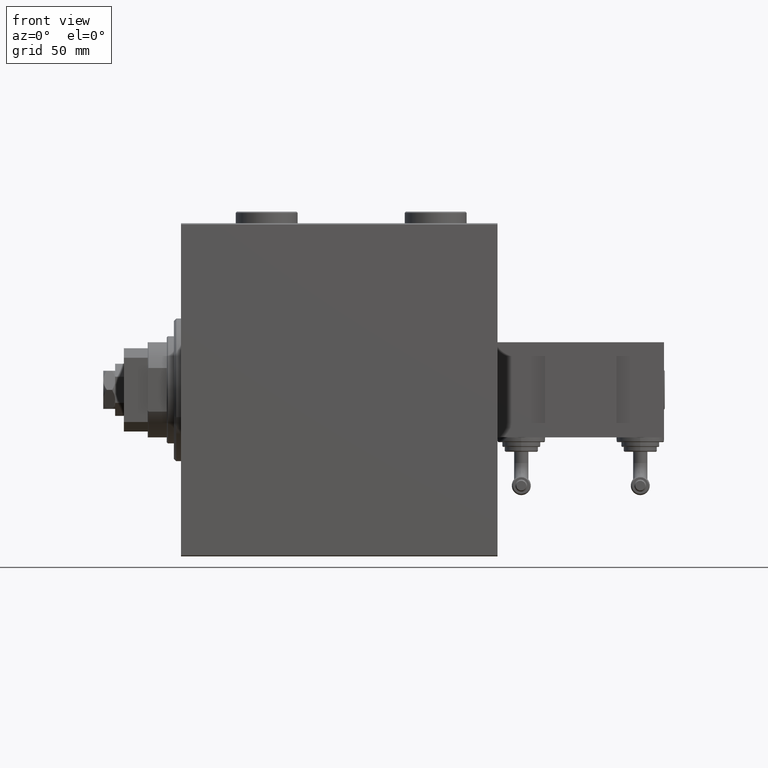
[diagram: clean part render]
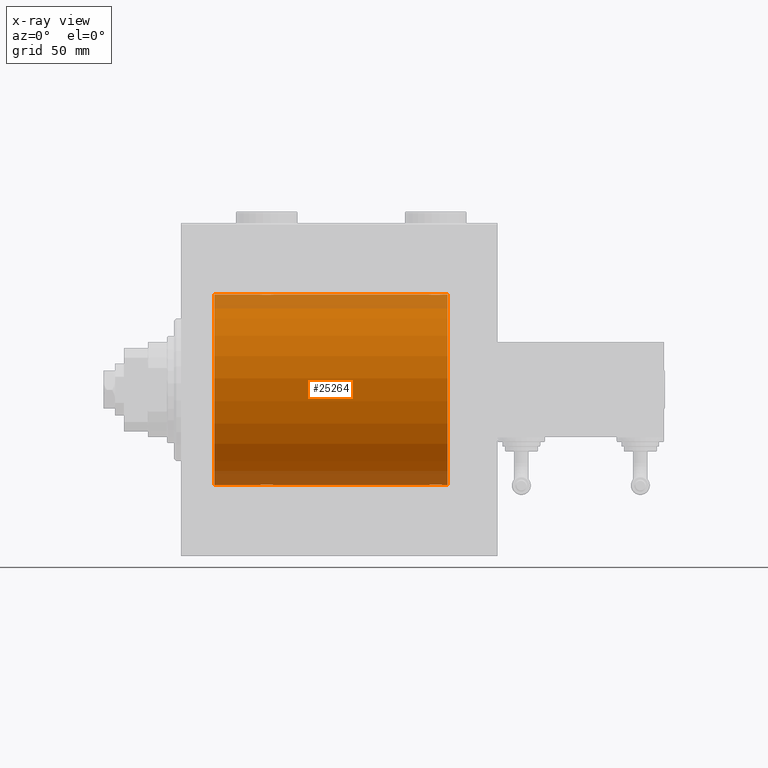
[diagram: x-ray — body ghosted, one internal face saturated and labeled with its STEP entity id]
A machine part, front view, then the same camera in x-ray: the body is ghosted and one INTERNAL B-rep face — a face not visible from any outside direction — is saturated and labeled: STEP entity #25264.
In plain terms, the highlighted cylindrical surface (partial cylindrical patch) has radius 40 mm, axis along (-1, -0, -0).
Its self-contained STEP definition (entity closure, byte-faithful):
#48 = B_SPLINE_CURVE_WITH_KNOTS ( 'NONE', 3,
 ( #1043, #44565, #8462, #36867, #37397, #28648, #4753, #12440, #507, #25183, #45085, #5015, #44820, #33154, #17209, #16672, #46291, #44311, #29187, #16939, #33425, #24655, #7950, #3966, #40325, #32879, #49043, #32374, #4224, #20144, #49308, #16156 ),
 .UNSPECIFIED., .F., .F.,
 ( 4, 2, 2, 2, 2, 2, 2, 2, 2, 2, 2, 2, 2, 2, 2, 4 ),
 ( 0.009382660366305081018, 0.009968941372944116822, 0.01055522237958315263, 0.01114150338622219016, 0.01172778439286122597, 0.01231406539950026177, 0.01290034640613929931, 0.01348662741277833511, 0.01407290841941737092, 0.01465918942605640846, 0.01524547043269544253, 0.01583175143933448006, 0.01641803244597351413, 0.01700431345261255167, 0.01759059445925158921, 0.01876315647252966082 ),
 .UNSPECIFIED. ) ;
#507 = CARTESIAN_POINT ( 'NONE',  ( 33.73902383005257377, -1.981471132463168638, 39.95113231465138881 ) ) ;
#699 = CARTESIAN_POINT ( 'NONE',  ( 104.0189812288907376, -0.3904143323716007807, 39.99856256910221219 ) ) ;
#874 = ORIENTED_EDGE ( 'NONE', *, *, #49864, .T. ) ;
#975 = B_SPLINE_CURVE_WITH_KNOTS ( 'NONE', 3,
 ( #37813, #13112, #29331, #42295, #33031, #25590, #9129, #9666, #9397, #1447, #41781, #49185, #5689, #12843, #29064, #29857, #46024, #21864, #35142, #27434, #47053, #46795, #26382, #10963, #22657, #50502, #30377, #27169, #11231, #10455, #47308, #22393 ),
 .UNSPECIFIED., .F., .F.,
 ( 4, 2, 2, 2, 2, 2, 2, 2, 2, 2, 2, 2, 2, 2, 2, 4 ),
 ( 0.009382660366305127855, 0.009968941372944165394, 0.01055522237958320120, 0.01114150338622223874, 0.01172778439286127627, 0.01231406539950031381, 0.01290034640613934962, 0.01348662741277838716, 0.01407290841941742296, 0.01465918942605646050, 0.01524547043269549804, 0.01583175143933453557, 0.01641803244597356964, 0.01700431345261260718, 0.01759059445925164472, 0.01876315647252971980 ),
 .UNSPECIFIED. ) ;
#1043 = CARTESIAN_POINT ( 'NONE',  ( 32.99999999999999289, -1.483452932268112700E-23, 40.00000000000000000 ) ) ;
#1077 = EDGE_CURVE ( 'NONE', #3553, #29092, #17455, .T. ) ;
#1447 = CARTESIAN_POINT ( 'NONE',  ( 108.9846144781227935, -2.258217541132904405, -39.93644519243652979 ) ) ;
#2131 = CARTESIAN_POINT ( 'NONE',  ( 32.99999999999999289, -1.483452932268112700E-23, 40.00000000000000000 ) ) ;
#2494 = CARTESIAN_POINT ( 'NONE',  ( 110.0000000000000000, -0.3964922677423690645, 40.00000000000000000 ) ) ;
#2718 = CARTESIAN_POINT ( 'NONE',  ( 38.98101877110926239, -0.3904143323715922875, -39.99856256910221219 ) ) ;
#2768 = EDGE_CURVE ( 'NONE', #15021, #48831, #34341, .T. ) ;
#2979 = CARTESIAN_POINT ( 'NONE',  ( 33.00000000000000000, -0.3964922677423601272, -40.00000000000001421 ) ) ;
#3111 = ORIENTED_EDGE ( 'NONE', *, *, #2768, .T. ) ;
#3493 = CARTESIAN_POINT ( 'NONE',  ( 35.60890307490667794, -2.980812880639888363, -39.88879797994690080 ) ) ;
#3553 = VERTEX_POINT ( 'NONE', #27607 ) ;
#3566 = CARTESIAN_POINT ( 'NONE',  ( 13.99999999999999822, 4.898587196589413026E-15, -40.00000000000000000 ) ) ;
#3966 = CARTESIAN_POINT ( 'NONE',  ( 37.82690184632411956, -2.387636253591820523, 39.92882473497731866 ) ) ;
#4224 = CARTESIAN_POINT ( 'NONE',  ( 38.69537007708435539, -1.331594428131646080, 39.97823692017209396 ) ) ;
#4686 = CARTESIAN_POINT ( 'NONE',  ( 105.1695517717759998, -2.384933850258125876, 39.92898715513240404 ) ) ;
#4753 = CARTESIAN_POINT ( 'NONE',  ( 33.39566400087915810, -1.502129635934004170, 39.97212271185186694 ) ) ;
#4787 = DIRECTION ( 'NONE',  ( -1.000000000000000000, -0.000000000000000000, -0.000000000000000000 ) ) ;
#4949 = CARTESIAN_POINT ( 'NONE',  ( 106.0306165810553409, -2.845855236045354619, 39.89870693240651178 ) ) ;
#5015 = CARTESIAN_POINT ( 'NONE',  ( 34.49556917086532337, -2.602909538701755565, 39.91537030566259148 ) ) ;
#5096 = EDGE_CURVE ( 'NONE', #5564, #35426, #7562, .T. ) ;
#5367 = CIRCLE ( 'NONE', #24862, 40.00000000000000000 ) ;
#5564 = VERTEX_POINT ( 'NONE', #30842 ) ;
#5689 = CARTESIAN_POINT ( 'NONE',  ( 108.3322426886586669, -2.695129988695733836, -39.90917164320281785 ) ) ;
#6460 = CARTESIAN_POINT ( 'NONE',  ( 109.9202617499164916, -0.7903958539027468033, 39.99381900068937057 ) ) ;
#6680 = CARTESIAN_POINT ( 'NONE',  ( 37.33224268865864559, -2.695129988695730727, -39.90917164320281074 ) ) ;
#7460 = CARTESIAN_POINT ( 'NONE',  ( 33.39811271871507614, -1.506322235190776127, -39.97196309111974699 ) ) ;
#7562 = LINE ( 'NONE', #39941, #21165 ) ;
#7950 = CARTESIAN_POINT ( 'NONE',  ( 37.50088468404035069, -2.604941918888315833, 39.91523680494983495 ) ) ;
#8462 = CARTESIAN_POINT ( 'NONE',  ( 33.01898122889073051, -0.3904143323715975056, 39.99856256910221219 ) ) ;
#9129 = CARTESIAN_POINT ( 'NONE',  ( 109.6043359991208632, -1.502129635934003504, -39.97212271185185273 ) ) ;
#9397 = CARTESIAN_POINT ( 'NONE',  ( 109.2609761699474404, -1.981471132463168638, -39.95113231465138881 ) ) ;
#9496 = CARTESIAN_POINT ( 'NONE',  ( 112.0000000000000000, 0.000000000000000000, 40.00000000000000000 ) ) ;
#9666 = CARTESIAN_POINT ( 'NONE',  ( 109.3850760091535506, -1.830402106103516058, -39.95843610133493229 ) ) ;
#10455 = CARTESIAN_POINT ( 'NONE',  ( 104.0797382500835369, -0.7903958539027354790, -39.99381900068937057 ) ) ;
#10929 = CARTESIAN_POINT ( 'NONE',  ( 34.49911531595964220, -2.604941918888299401, -39.91523680494982784 ) ) ;
#10963 = CARTESIAN_POINT ( 'NONE',  ( 105.1730981536759089, -2.387636253591818747, -39.92882473497732576 ) ) ;
#11030 = ORIENTED_EDGE ( 'NONE', *, *, #27227, .T. ) ;
#11228 = CARTESIAN_POINT ( 'NONE',  ( 109.2582967032050192, -1.984537326394317569, 39.95097977400578060 ) ) ;
#11231 = CARTESIAN_POINT ( 'NONE',  ( 104.3046299229156233, -1.331594428131639640, -39.97823692017208685 ) ) ;
#11452 = CARTESIAN_POINT ( 'NONE',  ( 38.26097616994741912, -1.981471132463159535, -39.95113231465138881 ) ) ;
#11562 = ORIENTED_EDGE ( 'NONE', *, *, #19044, .T. ) ;
#12081 = VECTOR ( 'NONE', #43175, 1000.000000000000000 ) ;
#12175 = VECTOR ( 'NONE', #4787, 1000.000000000000000 ) ;
#12382 = CARTESIAN_POINT ( 'NONE',  ( 104.7390238300526022, -1.981471132463181295, 39.95113231465138881 ) ) ;
#12440 = CARTESIAN_POINT ( 'NONE',  ( 33.61492399084646365, -1.830402106103518056, 39.95843610133494650 ) ) ;
#12843 = CARTESIAN_POINT ( 'NONE',  ( 107.9693834189446875, -2.845855236045339520, -39.89870693240651178 ) ) ;
#12890 = AXIS2_PLACEMENT_3D ( 'NONE', #32105, #36090, #24393 ) ;
#12943 = DIRECTION ( 'NONE',  ( -1.000000000000000000, -0.000000000000000000, -0.000000000000000000 ) ) ;
#13112 = CARTESIAN_POINT ( 'NONE',  ( 110.0000000000000284, -0.1957844162750512762, -39.99999999999999289 ) ) ;
#13841 = ORIENTED_EDGE ( 'NONE', *, *, #23745, .T. ) ;
#14267 = EDGE_CURVE ( 'NONE', #33406, #49078, #17245, .T. ) ;
#14291 = VECTOR ( 'NONE', #12943, 1000.000000000000000 ) ;
#14419 = CARTESIAN_POINT ( 'NONE',  ( 108.8269018463241053, -2.387636253591832514, 39.92882473497732576 ) ) ;
#14651 = CARTESIAN_POINT ( 'NONE',  ( 36.20041286019198168, -2.999840380514733340, -39.88735335562824957 ) ) ;
#14912 = CARTESIAN_POINT ( 'NONE',  ( 38.69721340580881019, -1.327859336864143147, -39.97836169682018692 ) ) ;
#15021 = VERTEX_POINT ( 'NONE', #35561 ) ;
#15425 = CARTESIAN_POINT ( 'NONE',  ( 33.07973825008353685, -0.7903958539027335917, -39.99381900068937057 ) ) ;
#15681 = CARTESIAN_POINT ( 'NONE',  ( 32.99999999999999289, 8.398598542115384856E-15, -40.00000000000000000 ) ) ;
#16100 = EDGE_CURVE ( 'NONE', #15021, #24383, #36655, .T. ) ;
#16156 = CARTESIAN_POINT ( 'NONE',  ( 39.00000000000000000, -1.886242593979369380E-15, 40.00000000000000000 ) ) ;
#16353 = CARTESIAN_POINT ( 'NONE',  ( 104.3027865941912182, -1.327859336864157358, 39.97836169682016561 ) ) ;
#16672 = CARTESIAN_POINT ( 'NONE',  ( 35.60477516546423260, -2.980272303779554655, 39.88883864243167920 ) ) ;
#16939 = CARTESIAN_POINT ( 'NONE',  ( 36.77455678826341057, -2.904869018727228358, 39.89440043036668015 ) ) ;
#17119 = ORIENTED_EDGE ( 'NONE', *, *, #48047, .T. ) ;
#17209 = CARTESIAN_POINT ( 'NONE',  ( 35.22130476584258219, -2.903766417398241373, 39.89448096967571189 ) ) ;
#17245 = LINE ( 'NONE', #21490, #12175 ) ;
#17455 = LINE ( 'NONE', #9496, #14291 ) ;
#18669 = CARTESIAN_POINT ( 'NONE',  ( 107.3910969250933505, -2.980812880639910123, 39.88879797994688658 ) ) ;
#18932 = CARTESIAN_POINT ( 'NONE',  ( 110.0000000000000142, -2.794909241144302331E-15, 40.00000000000000000 ) ) ;
#18995 = DIRECTION ( 'NONE',  ( -1.000000000000000000, -0.000000000000000000, -0.000000000000000000 ) ) ;
#19044 = EDGE_CURVE ( 'NONE', #20350, #49078, #5367, .T. ) ;
#19115 = VECTOR ( 'NONE', #47440, 1000.000000000000000 ) ;
#20144 = CARTESIAN_POINT ( 'NONE',  ( 38.92026174991646315, -0.7903958539027399199, 39.99381900068935636 ) ) ;
#20350 = VERTEX_POINT ( 'NONE', #3566 ) ;
#20860 = CARTESIAN_POINT ( 'NONE',  ( 105.4955691708653518, -2.602909538701771996, 39.91537030566259148 ) ) ;
#21117 = CARTESIAN_POINT ( 'NONE',  ( 104.1533472698686182, -0.9668189122103458821, 39.98872185468384544 ) ) ;
#21165 = VECTOR ( 'NONE', #18995, 1000.000000000000000 ) ;
#21372 = B_SPLINE_CURVE_WITH_KNOTS ( 'NONE', 3,
 ( #28590, #24854, #699, #25118, #21117, #16353, #29125, #32564, #12382, #41044, #4686, #20860, #41304, #4949, #47051, #39618, #34614, #25651, #18669, #27432, #37872, #51803, #43350, #14419, #22655, #11228, #30902, #42822, #50760, #6460, #2494, #18932 ),
 .UNSPECIFIED., .F., .F.,
 ( 4, 2, 2, 2, 2, 2, 2, 2, 2, 2, 2, 2, 2, 2, 2, 4 ),
 ( 0.009382660366305098365, 0.009968941372944135904, 0.01055522237958317344, 0.01114150338622220925, 0.01172778439286124678, 0.01231406539950028432, 0.01290034640613932013, 0.01348662741277835767, 0.01407290841941739520, 0.01465918942605643274, 0.01524547043269547028, 0.01583175143933450435, 0.01641803244597354189, 0.01700431345261257943, 0.01759059445925161697, 0.01876315647252969204 ),
 .UNSPECIFIED. ) ;
#21490 = CARTESIAN_POINT ( 'NONE',  ( 112.0000000000000000, 0.000000000000000000, 40.00000000000000000 ) ) ;
#21864 = CARTESIAN_POINT ( 'NONE',  ( 106.8043946892691736, -3.000157693440637985, -39.88732948994960026 ) ) ;
#22393 = CARTESIAN_POINT ( 'NONE',  ( 104.0000000000000142, 4.637093495725619447E-15, -40.00000000000000000 ) ) ;
#22655 = CARTESIAN_POINT ( 'NONE',  ( 108.9813627951423456, -2.261082456166716881, 39.93628274425758207 ) ) ;
#22657 = CARTESIAN_POINT ( 'NONE',  ( 105.0186372048576970, -2.261082456166704446, -39.93628274425758917 ) ) ;
#23141 = CARTESIAN_POINT ( 'NONE',  ( 37.83044822822401443, -2.384933850258097010, -39.92898715513240404 ) ) ;
#23438 = DIRECTION ( 'NONE',  ( -1.000000000000000000, -0.000000000000000000, -0.000000000000000000 ) ) ;
#23517 = CARTESIAN_POINT ( 'NONE',  ( 112.0000000000000000, 0.000000000000000000, 40.00000000000000000 ) ) ;
#23745 = EDGE_CURVE ( 'NONE', #33406, #29092, #48, .T. ) ;
#24383 = VERTEX_POINT ( 'NONE', #44827 ) ;
#24393 = DIRECTION ( 'NONE',  ( 0.000000000000000000, 0.000000000000000000, 1.000000000000000000 ) ) ;
#24602 = EDGE_CURVE ( 'NONE', #36789, #20350, #35522, .T. ) ;
#24655 = CARTESIAN_POINT ( 'NONE',  ( 37.32853644746295885, -2.696981015661930936, 39.90904630908465833 ) ) ;
#24854 = CARTESIAN_POINT ( 'NONE',  ( 104.0000000000000142, -0.1957844162750575212, 39.99999999999999289 ) ) ;
#24862 = AXIS2_PLACEMENT_3D ( 'NONE', #41580, #41311, #24865 ) ;
#24865 = DIRECTION ( 'NONE',  ( 0.000000000000000000, 0.000000000000000000, 1.000000000000000000 ) ) ;
#25118 = CARTESIAN_POINT ( 'NONE',  ( 104.0957482634864846, -0.7773146824711071323, 39.99291453282344833 ) ) ;
#25183 = CARTESIAN_POINT ( 'NONE',  ( 34.01538552187719233, -2.258217541132905293, 39.93644519243653690 ) ) ;
#25264 = ADVANCED_FACE ( 'NONE', ( #47574 ), #31421, .F. ) ;
#25590 = CARTESIAN_POINT ( 'NONE',  ( 109.6972134058088386, -1.327859336864146700, -39.97836169682017982 ) ) ;
#25651 = CARTESIAN_POINT ( 'NONE',  ( 107.1956053107308406, -3.000157693440651752, 39.88732948994960026 ) ) ;
#26382 = CARTESIAN_POINT ( 'NONE',  ( 105.4991153159596564, -2.604941918888313612, -39.91523680494982784 ) ) ;
#27169 = CARTESIAN_POINT ( 'NONE',  ( 104.3981127187150832, -1.506322235190780345, -39.97196309111975410 ) ) ;
#27227 = EDGE_CURVE ( 'NONE', #3553, #37212, #21372, .T. ) ;
#27432 = CARTESIAN_POINT ( 'NONE',  ( 107.7745567882634248, -2.904869018727233687, 39.89440043036668726 ) ) ;
#27434 = CARTESIAN_POINT ( 'NONE',  ( 106.2254432117366036, -2.904869018727219920, -39.89440043036668726 ) ) ;
#27607 = CARTESIAN_POINT ( 'NONE',  ( 104.0000000000000142, -1.483492375313373751E-23, 40.00000000000000000 ) ) ;
#27655 = CARTESIAN_POINT ( 'NONE',  ( 33.74170329679496660, -1.984537326394296253, -39.95097977400577349 ) ) ;
#28590 = CARTESIAN_POINT ( 'NONE',  ( 104.0000000000000142, -1.483492375313373751E-23, 40.00000000000000000 ) ) ;
#28648 = CARTESIAN_POINT ( 'NONE',  ( 33.30278659419118270, -1.327859336864149586, 39.97836169682017982 ) ) ;
#29064 = CARTESIAN_POINT ( 'NONE',  ( 107.7786952341574249, -2.903766417398237820, -39.89448096967571189 ) ) ;
#29092 = VERTEX_POINT ( 'NONE', #43968 ) ;
#29125 = CARTESIAN_POINT ( 'NONE',  ( 104.3956640008791794, -1.502129635934016383, 39.97212271185185983 ) ) ;
#29187 = CARTESIAN_POINT ( 'NONE',  ( 36.39109692509333627, -2.980812880639903906, 39.88879797994688658 ) ) ;
#29331 = CARTESIAN_POINT ( 'NONE',  ( 109.9810187711093050, -0.3904143323715937308, -39.99856256910221219 ) ) ;
#29857 = CARTESIAN_POINT ( 'NONE',  ( 107.3952248345357390, -2.980272303779549325, -39.88883864243167920 ) ) ;
#30365 = DIRECTION ( 'NONE',  ( -1.000000000000000000, -0.000000000000000000, -0.000000000000000000 ) ) ;
#30377 = CARTESIAN_POINT ( 'NONE',  ( 104.6174831908853804, -1.833695109615715690, -39.95828327492363741 ) ) ;
#30842 = CARTESIAN_POINT ( 'NONE',  ( 104.0000000000000142, 4.637093495725619447E-15, -40.00000000000000000 ) ) ;
#30865 = CARTESIAN_POINT ( 'NONE',  ( 33.30462992291564461, -1.331594428131637420, -39.97823692017210817 ) ) ;
#30902 = CARTESIAN_POINT ( 'NONE',  ( 109.3825168091146622, -1.833695109615728125, 39.95828327492363741 ) ) ;
#31124 = CARTESIAN_POINT ( 'NONE',  ( 37.98461447812281477, -2.258217541132894191, -39.93644519243654400 ) ) ;
#31383 = CARTESIAN_POINT ( 'NONE',  ( 39.00000000000000000, -0.1957844162750501937, -39.99999999999999289 ) ) ;
#31421 = CYLINDRICAL_SURFACE ( 'NONE', #39500, 40.00000000000000000 ) ;
#31637 = CARTESIAN_POINT ( 'NONE',  ( 36.77869523415741781, -2.903766417398227162, -39.89448096967571900 ) ) ;
#31895 = CARTESIAN_POINT ( 'NONE',  ( 37.50443082913467663, -2.602909538701744463, -39.91537030566261279 ) ) ;
#32105 = CARTESIAN_POINT ( 'NONE',  ( 112.0000000000000000, 0.000000000000000000, 0.000000000000000000 ) ) ;
#32374 = CARTESIAN_POINT ( 'NONE',  ( 38.60188728128492386, -1.506322235190783232, 39.97196309111974699 ) ) ;
#32564 = CARTESIAN_POINT ( 'NONE',  ( 104.6149239908464921, -1.830402106103529380, 39.95843610133493229 ) ) ;
#32879 = CARTESIAN_POINT ( 'NONE',  ( 38.25829670320501918, -1.984537326394312462, 39.95097977400578060 ) ) ;
#33031 = CARTESIAN_POINT ( 'NONE',  ( 109.8466527301314102, -0.9668189122103358901, -39.98872185468385254 ) ) ;
#33154 = CARTESIAN_POINT ( 'NONE',  ( 35.03061658105535514, -2.845855236045346626, 39.89870693240651889 ) ) ;
#33406 = VERTEX_POINT ( 'NONE', #2131 ) ;
#33425 = CARTESIAN_POINT ( 'NONE',  ( 36.96489325853514174, -2.847401743820462183, 39.89859630624607689 ) ) ;
#34341 = LINE ( 'NONE', #50488, #50758 ) ;
#34614 = CARTESIAN_POINT ( 'NONE',  ( 106.7995871398080254, -2.999840380514755100, 39.88735335562824957 ) ) ;
#35104 = CARTESIAN_POINT ( 'NONE',  ( 35.80439468926913094, -3.000157693440628659, -39.88732948994960736 ) ) ;
#35142 = CARTESIAN_POINT ( 'NONE',  ( 106.6089030749067064, -2.980812880639896356, -39.88879797994688658 ) ) ;
#35211 = ORIENTED_EDGE ( 'NONE', *, *, #14267, .F. ) ;
#35362 = CARTESIAN_POINT ( 'NONE',  ( 34.01863720485771125, -2.261082456166694676, -39.93628274425758917 ) ) ;
#35426 = VERTEX_POINT ( 'NONE', #51631 ) ;
#35522 = LINE ( 'NONE', #43222, #19115 ) ;
#35561 = CARTESIAN_POINT ( 'NONE',  ( 112.0000000000000000, 4.898587196589413026E-15, -40.00000000000000000 ) ) ;
#35857 = ORIENTED_EDGE ( 'NONE', *, *, #46571, .F. ) ;
#36090 = DIRECTION ( 'NONE',  ( -1.000000000000000000, 0.000000000000000000, 0.000000000000000000 ) ) ;
#36097 = CARTESIAN_POINT ( 'NONE',  ( 13.99999999999999822, 0.000000000000000000, 40.00000000000000000 ) ) ;
#36655 = CIRCLE ( 'NONE', #12890, 40.00000000000000000 ) ;
#36740 = CARTESIAN_POINT ( 'NONE',  ( 110.0000000000000142, 4.898587181754971267E-15, -40.00000000000000000 ) ) ;
#36789 = VERTEX_POINT ( 'NONE', #44284 ) ;
#36867 = CARTESIAN_POINT ( 'NONE',  ( 33.09574826348647036, -0.7773146824711031355, 39.99291453282343412 ) ) ;
#37106 = B_SPLINE_CURVE_WITH_KNOTS ( 'NONE', 3,
 ( #52022, #31383, #2718, #39069, #47016, #14912, #47273, #47535, #11452, #31124, #23141, #31895, #6680, #51511, #31637, #43049, #14651, #35104, #3493, #47789, #39334, #51770, #10929, #43578, #35362, #27655, #43830, #7460, #30865, #15425, #2979, #15681 ),
 .UNSPECIFIED., .F., .F.,
 ( 4, 2, 2, 2, 2, 2, 2, 2, 2, 2, 2, 2, 2, 2, 2, 4 ),
 ( 0.009382660366305113978, 0.009968941372944149781, 0.01055522237958318559, 0.01114150338622222139, 0.01172778439286125719, 0.01231406539950029300, 0.01290034640613932707, 0.01348662741277836287, 0.01407290841941739867, 0.01465918942605643448, 0.01524547043269547028, 0.01583175143933450435, 0.01641803244597354189, 0.01700431345261257943, 0.01759059445925161697, 0.01876315647252968857 ),
 .UNSPECIFIED. ) ;
#37172 = ORIENTED_EDGE ( 'NONE', *, *, #5096, .T. ) ;
#37212 = VERTEX_POINT ( 'NONE', #42054 ) ;
#37397 = CARTESIAN_POINT ( 'NONE',  ( 33.15334726986859692, -0.9668189122103382216, 39.98872185468385254 ) ) ;
#37813 = CARTESIAN_POINT ( 'NONE',  ( 110.0000000000000142, 4.898587181754971267E-15, -40.00000000000000000 ) ) ;
#37872 = CARTESIAN_POINT ( 'NONE',  ( 107.9648932585351417, -2.847401743820471065, 39.89859630624608400 ) ) ;
#39069 = CARTESIAN_POINT ( 'NONE',  ( 38.90425173651352253, -0.7773146824710970293, -39.99291453282343412 ) ) ;
#39334 = CARTESIAN_POINT ( 'NONE',  ( 35.03510674146485115, -2.847401743820447084, -39.89859630624608400 ) ) ;
#39500 = AXIS2_PLACEMENT_3D ( 'NONE', #51810, #23438, #47831 ) ;
#39618 = CARTESIAN_POINT ( 'NONE',  ( 106.6047751654642468, -2.980272303779561316, 39.88883864243167920 ) ) ;
#39941 = CARTESIAN_POINT ( 'NONE',  ( 112.0000000000000000, 4.898587196589413026E-15, -40.00000000000000000 ) ) ;
#40222 = LINE ( 'NONE', #23517, #12081 ) ;
#40325 = CARTESIAN_POINT ( 'NONE',  ( 37.98136279514229585, -2.261082456166712440, 39.93628274425758207 ) ) ;
#41044 = CARTESIAN_POINT ( 'NONE',  ( 105.0153855218772065, -2.258217541132916395, 39.93644519243652979 ) ) ;
#41304 = CARTESIAN_POINT ( 'NONE',  ( 105.6677573113413615, -2.695129988695747603, 39.90917164320281785 ) ) ;
#41311 = DIRECTION ( 'NONE',  ( -1.000000000000000000, 0.000000000000000000, 0.000000000000000000 ) ) ;
#41580 = CARTESIAN_POINT ( 'NONE',  ( 13.99999999999999822, 0.000000000000000000, 0.000000000000000000 ) ) ;
#41781 = CARTESIAN_POINT ( 'NONE',  ( 108.8304482282240286, -2.384933850258111221, -39.92898715513240404 ) ) ;
#42054 = CARTESIAN_POINT ( 'NONE',  ( 110.0000000000000142, -2.794909241144302331E-15, 40.00000000000000000 ) ) ;
#42295 = CARTESIAN_POINT ( 'NONE',  ( 109.9042517365135296, -0.7773146824710993608, -39.99291453282344122 ) ) ;
#42822 = CARTESIAN_POINT ( 'NONE',  ( 109.6018872812849310, -1.506322235190793668, 39.97196309111975410 ) ) ;
#43049 = CARTESIAN_POINT ( 'NONE',  ( 36.39522483453575319, -2.980272303779539556, -39.88883864243169342 ) ) ;
#43175 = DIRECTION ( 'NONE',  ( -1.000000000000000000, -0.000000000000000000, -0.000000000000000000 ) ) ;
#43222 = CARTESIAN_POINT ( 'NONE',  ( 112.0000000000000000, 4.898587196589413026E-15, -40.00000000000000000 ) ) ;
#43350 = CARTESIAN_POINT ( 'NONE',  ( 108.5008846840403436, -2.604941918888326935, 39.91523680494982784 ) ) ;
#43578 = CARTESIAN_POINT ( 'NONE',  ( 34.17309815367587333, -2.387636253591803648, -39.92882473497732576 ) ) ;
#43830 = CARTESIAN_POINT ( 'NONE',  ( 33.61748319088536618, -1.833695109615709917, -39.95828327492364451 ) ) ;
#43968 = CARTESIAN_POINT ( 'NONE',  ( 39.00000000000000000, -1.886242593979369380E-15, 40.00000000000000000 ) ) ;
#44284 = CARTESIAN_POINT ( 'NONE',  ( 32.99999999999999289, 8.398598542115384856E-15, -40.00000000000000000 ) ) ;
#44311 = CARTESIAN_POINT ( 'NONE',  ( 36.19560531073086196, -3.000157693440645090, 39.88732948994960026 ) ) ;
#44400 = ORIENTED_EDGE ( 'NONE', *, *, #1077, .F. ) ;
#44565 = CARTESIAN_POINT ( 'NONE',  ( 32.99999999999997158, -0.1957844162750553285, 40.00000000000000000 ) ) ;
#44820 = CARTESIAN_POINT ( 'NONE',  ( 34.66775731134134020, -2.695129988695739609, 39.90917164320281074 ) ) ;
#44827 = CARTESIAN_POINT ( 'NONE',  ( 112.0000000000000000, 0.000000000000000000, 40.00000000000000000 ) ) ;
#45085 = CARTESIAN_POINT ( 'NONE',  ( 34.16955177177597847, -2.384933850258108556, 39.92898715513240404 ) ) ;
#46024 = CARTESIAN_POINT ( 'NONE',  ( 107.2004128601920030, -2.999840380514741334, -39.88735335562824957 ) ) ;
#46244 = ORIENTED_EDGE ( 'NONE', *, *, #16100, .F. ) ;
#46291 = CARTESIAN_POINT ( 'NONE',  ( 35.79958713980801832, -2.999840380514748883, 39.88735335562824247 ) ) ;
#46571 = EDGE_CURVE ( 'NONE', #24383, #37212, #40222, .T. ) ;
#46795 = CARTESIAN_POINT ( 'NONE',  ( 105.6714635525370483, -2.696981015661927383, -39.90904630908467254 ) ) ;
#47016 = CARTESIAN_POINT ( 'NONE',  ( 38.84665273013138886, -0.9668189122103337807, -39.98872185468385965 ) ) ;
#47051 = CARTESIAN_POINT ( 'NONE',  ( 106.2213047658425893, -2.903766417398247590, 39.89448096967571189 ) ) ;
#47053 = CARTESIAN_POINT ( 'NONE',  ( 106.0351067414648725, -2.847401743820458631, -39.89859630624608400 ) ) ;
#47273 = CARTESIAN_POINT ( 'NONE',  ( 38.60433599912082769, -1.502129635933996621, -39.97212271185184562 ) ) ;
#47308 = CARTESIAN_POINT ( 'NONE',  ( 104.0000000000000284, -0.3964922677423631803, -40.00000000000000000 ) ) ;
#47406 = EDGE_LOOP ( 'NONE', ( #46244, #3111, #874, #37172, #17119, #51513, #11562, #35211, #13841, #44400, #11030, #35857 ) ) ;
#47440 = DIRECTION ( 'NONE',  ( -1.000000000000000000, -0.000000000000000000, -0.000000000000000000 ) ) ;
#47535 = CARTESIAN_POINT ( 'NONE',  ( 38.38507600915352924, -1.830402106103509174, -39.95843610133493229 ) ) ;
#47574 = FACE_OUTER_BOUND ( 'NONE', #47406, .T. ) ;
#47789 = CARTESIAN_POINT ( 'NONE',  ( 35.22544321173659654, -2.904869018727211483, -39.89440043036668726 ) ) ;
#47831 = DIRECTION ( 'NONE',  ( 0.000000000000000000, 0.000000000000000000, 1.000000000000000000 ) ) ;
#48047 = EDGE_CURVE ( 'NONE', #35426, #36789, #37106, .T. ) ;
#48831 = VERTEX_POINT ( 'NONE', #36740 ) ;
#49043 = CARTESIAN_POINT ( 'NONE',  ( 38.38251680911464803, -1.833695109615719021, 39.95828327492363741 ) ) ;
#49078 = VERTEX_POINT ( 'NONE', #36097 ) ;
#49185 = CARTESIAN_POINT ( 'NONE',  ( 108.5044308291346482, -2.602909538701758674, -39.91537030566259148 ) ) ;
#49308 = CARTESIAN_POINT ( 'NONE',  ( 38.99999999999999289, -0.3964922677423670661, 40.00000000000000711 ) ) ;
#49864 = EDGE_CURVE ( 'NONE', #48831, #5564, #975, .T. ) ;
#50488 = CARTESIAN_POINT ( 'NONE',  ( 112.0000000000000000, 4.898587196589413026E-15, -40.00000000000000000 ) ) ;
#50502 = CARTESIAN_POINT ( 'NONE',  ( 104.7417032967949950, -1.984537326394304468, -39.95097977400578060 ) ) ;
#50758 = VECTOR ( 'NONE', #30365, 1000.000000000000000 ) ;
#50760 = CARTESIAN_POINT ( 'NONE',  ( 109.6953700770843767, -1.331594428131652963, 39.97823692017208685 ) ) ;
#51511 = CARTESIAN_POINT ( 'NONE',  ( 36.96938341894464486, -2.845855236045336412, -39.89870693240652599 ) ) ;
#51513 = ORIENTED_EDGE ( 'NONE', *, *, #24602, .T. ) ;
#51631 = CARTESIAN_POINT ( 'NONE',  ( 39.00000000000000000, 4.898587181755365697E-15, -40.00000000000000000 ) ) ;
#51770 = CARTESIAN_POINT ( 'NONE',  ( 34.67146355253703405, -2.696981015661913172, -39.90904630908467254 ) ) ;
#51803 = CARTESIAN_POINT ( 'NONE',  ( 108.3285364474629660, -2.696981015661940262, 39.90904630908467254 ) ) ;
#51810 = CARTESIAN_POINT ( 'NONE',  ( 112.0000000000000000, 0.000000000000000000, 0.000000000000000000 ) ) ;
#52022 = CARTESIAN_POINT ( 'NONE',  ( 39.00000000000000000, 4.898587181755365697E-15, -40.00000000000000000 ) ) ;